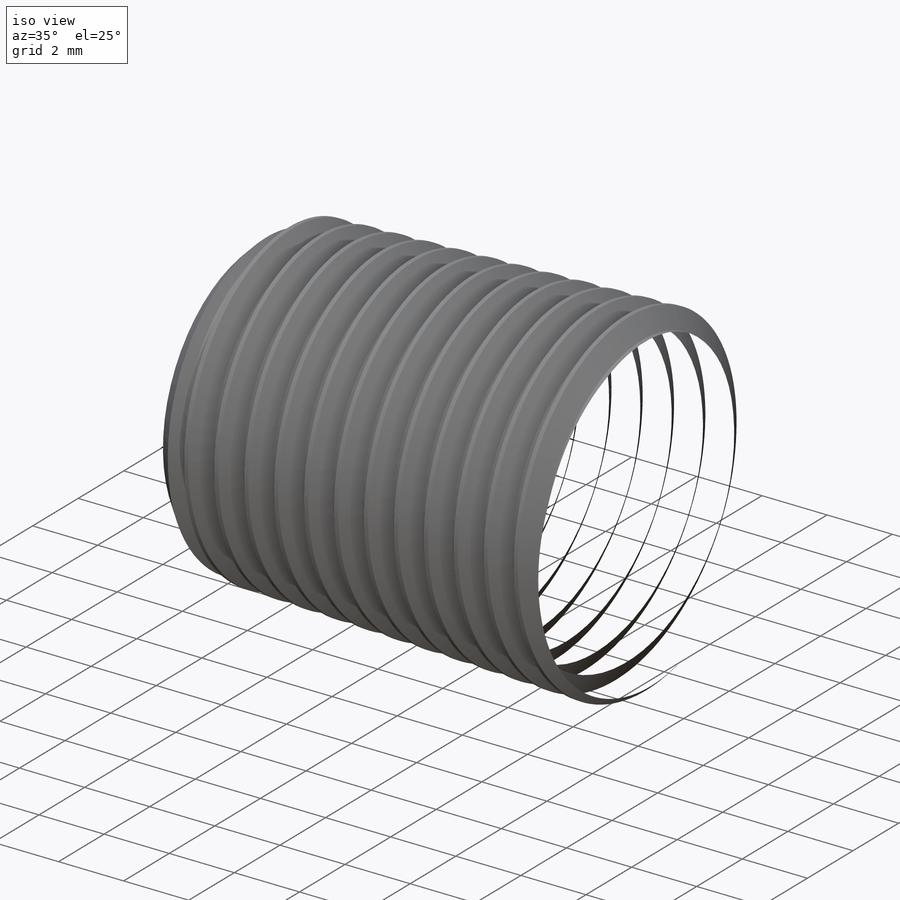
[diagram: iso view]
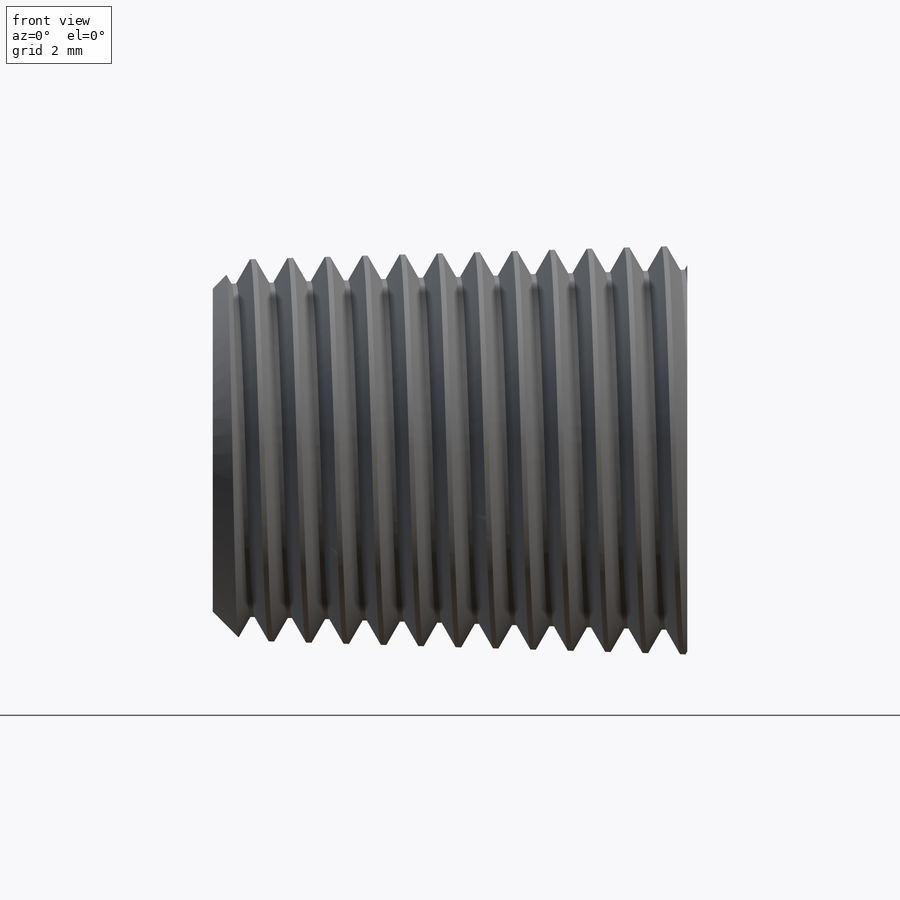
[diagram: front view]
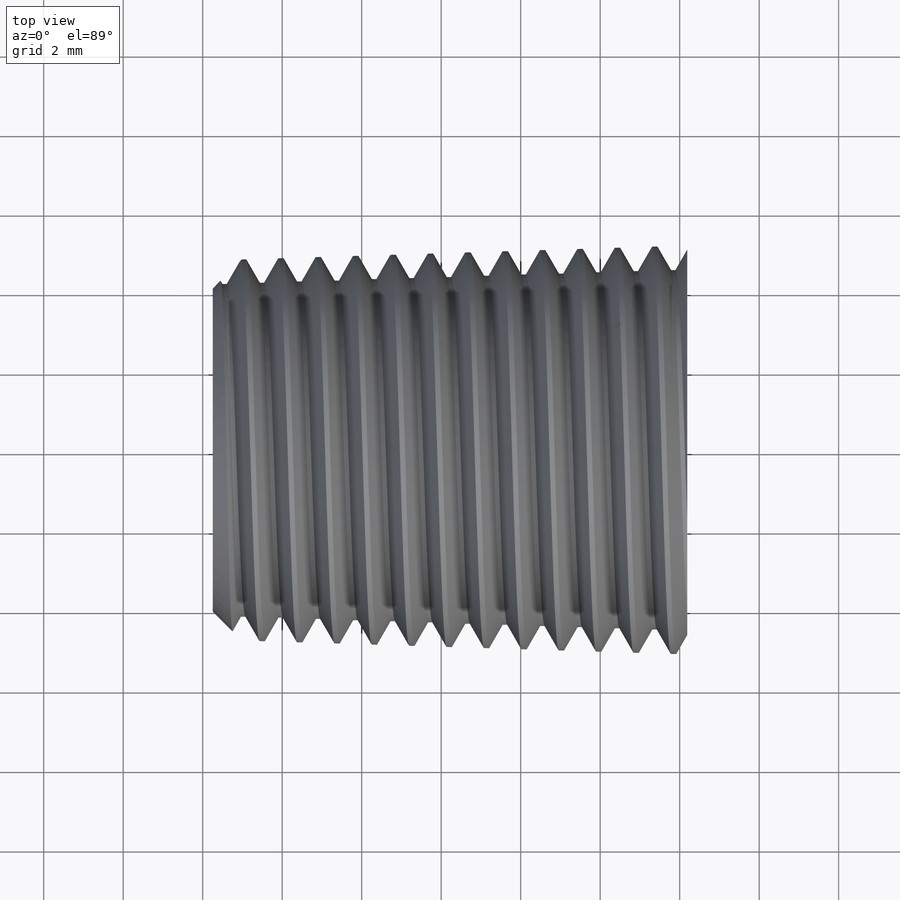
[diagram: top view]
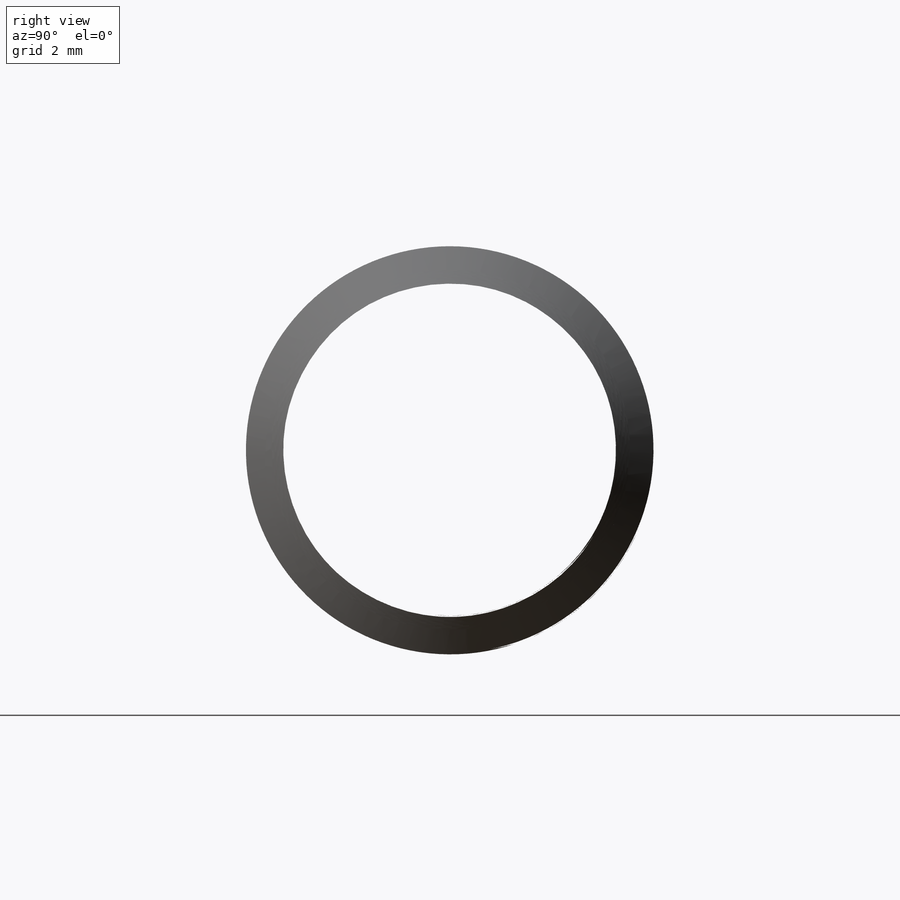
[diagram: right view]
SOLIDWORKS PART (.sldprt)
format: sldprt  version: not decoded by parser v0  size: 1,208,832 bytes
history: native  units: mm
features: sketch x7, cut_extrude x3, material x1, revolve x1, helix x1, sweep x1, extrude x1 (+13 scaffold rows collapsed)
feature tree (28):
  scaffold x13  (default folders/planes/origin — collapsed)
  material  "Material <not specified>"
  sketch  "Sketch1"  dims[c1.D1=~16.540476mm c2.D1=60.0deg c2.E0=110.0836mm c2.Thread Pitch=3.175mm c2.D4=~0.177469mm c3.D4=3.58deg c3.D5=~0.078395mm c3.D2=~0.104775mm c3.D3=~0.121043mm c3.L2 Thread Engagement=33.02mm c3.L4 Thread Length=~44.03598mm c3.ID=96.0mm c3.Pipe OD=114.3mm c3.Overall Length=76.2mm c4.D5=13.8684mm c4.D6=4.2037mm c4.N Length=55.0mm c4.D1=~47.658978mm c5.D1=1.5deg c5.OD=10.287mm c5.length=15.494mm c5.Hex=12.7mm c5.D2=11.938mm c5.D3=~10.396119mm c6.D3=~1.783333deg c6.OD=10.287mm c6.D1=~3.292593mm c6.Head Height=~10.957495mm c6.D4=~10.957495mm c6.D5=13.716mm c6.D6=~17.074028mm c7.Head Height=3.556mm]
  revolve  "Revolve1"  Angle=360deg
  sketch  "Sketch2"
  helix  "Helix/Spiral1"  Pitch=16.434741mm pitch=0.940741mm
  sketch  "Sketch4"  dims[D1=~0.705556mm D2=~1.411111mm]
  sketch  "Sketch3"  dims[c1.D1=~1.591246mm c2.D1=60.0deg c2.D2=~0.117593mm c2.D3=~0.47037mm c2.D4=~2.062223mm c3.D4=60.0deg c4.D4=~2.778125mm c5.D4=10.0deg c6.D4=~2.778125mm c7.D4=10.0deg]
  sweep  "Cut-Sweep1"
  cut_extrude  "Cut-Extrude1"  [1 undecoded]
  sketch  "Sketch5"  dims[D1=36.322mm]
  extrude  "Extrude1"  [1 undecoded]
  sketch  "Sketch6"
  cut_extrude  "Cut-Extrude2"  [1 undecoded]
  sketch  "Sketch7"
  cut_extrude  "Cut-Extrude3"  [1 undecoded]
decode coverage: 6 of 14 modeling features carry decoded parameters
note: ~ marks probable driven/reference dimensions
note: 4 parameter values undecoded
summary: no parameter record found for 4 features
note: suppression state not decoded; provenance and decode notes live in map.json
